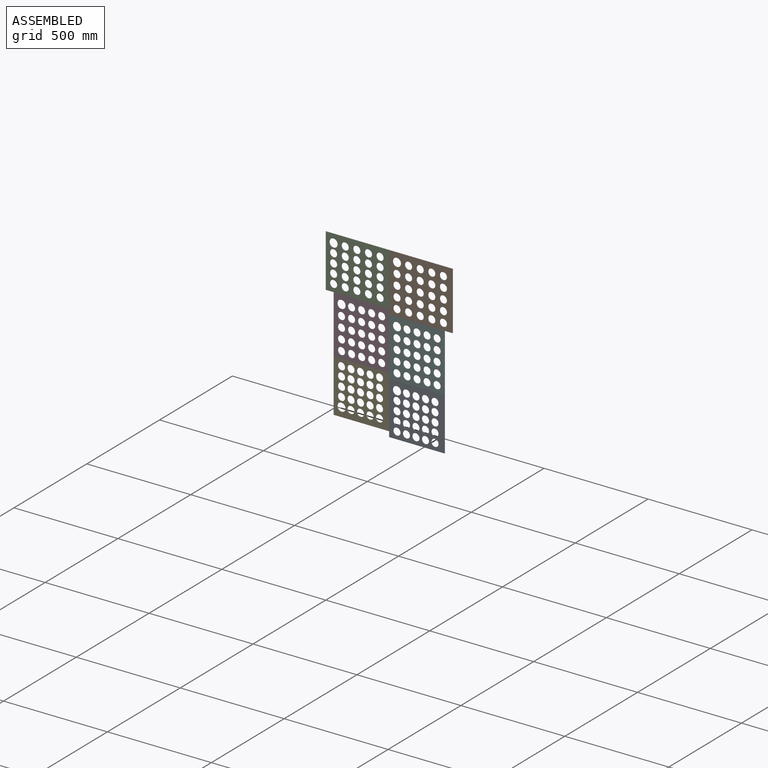
[diagram: assembled view]
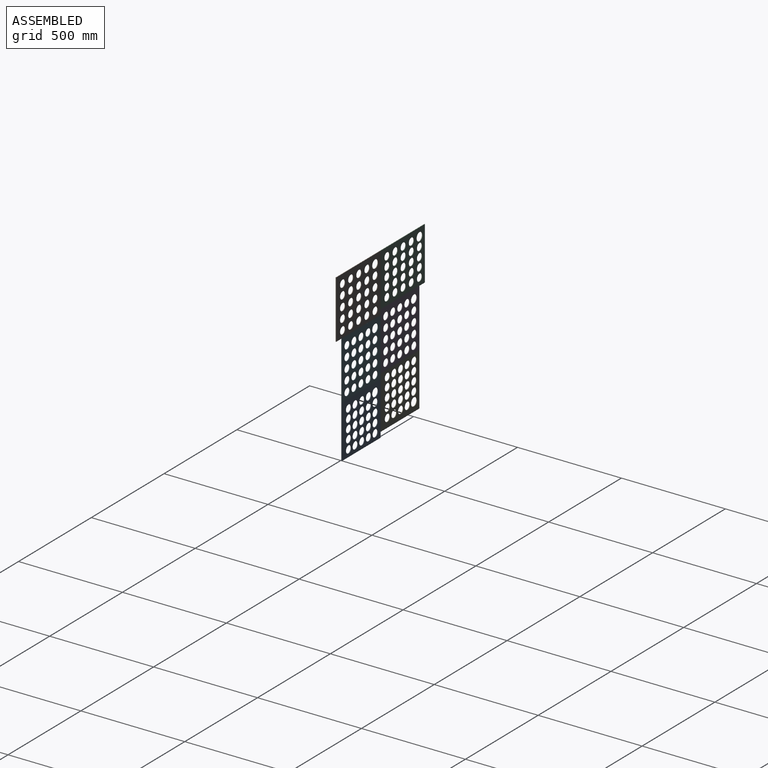
[diagram: assembled view, second angle]
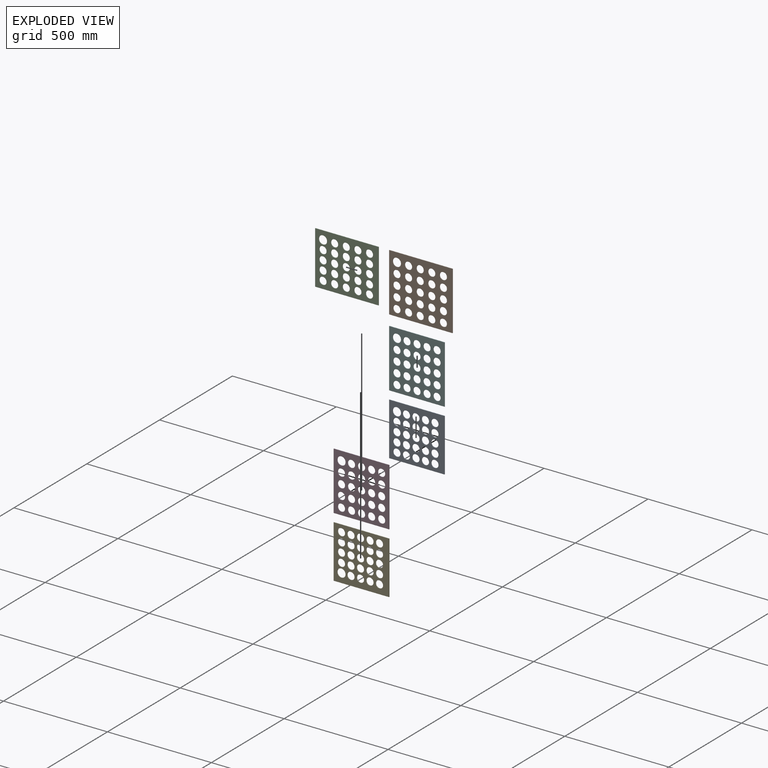
[diagram: exploded view]
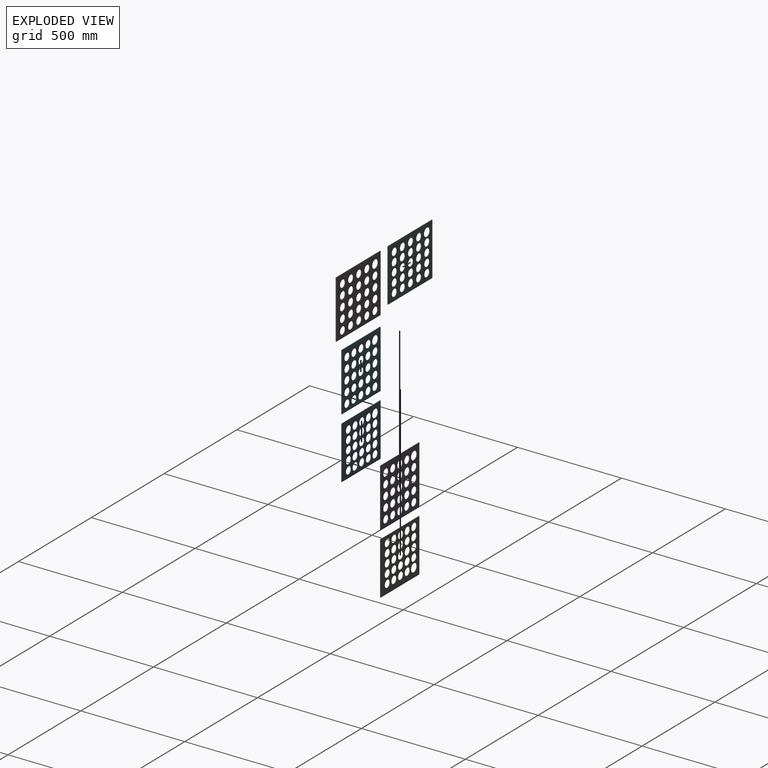
[diagram: exploded view, second angle]
ASSEMBLY  parts=6 mates=5
PART A: 31 faces, bbox 266.7x2.5x254 mm
  f0: plane 254x2.54mm, normal (-1,0,0), area 645.2mm2, adj f1,f28,f29,f30
  f1: plane 266.7x2.54mm, normal (0,0,-1), area 677.4mm2, adj f0,f2,f29,f30
  f2: plane 254x2.54mm, normal (1,0,0), area 645.2mm2, adj f1,f28,f29,f30
  f3: cylinder r=20.02mm len=40.04mm, axis (0,1,0), area 319.5mm2, adj f29,f30
  f4: cylinder r=17.62mm len=35.25mm, axis (0,1,0), area 281.3mm2, adj f29,f30
  f5: cylinder r=17.62mm len=35.25mm, axis (0,1,0), area 281.3mm2, adj f29,f30
  f6: cylinder r=17.62mm len=35.25mm, axis (0,1,0), area 281.3mm2, adj f29,f30
  f7: cylinder r=17.62mm len=35.25mm, axis (0,1,0), area 281.3mm2, adj f29,f30
  f8: cylinder r=17.62mm len=35.25mm, axis (0,1,0), area 281.3mm2, adj f29,f30
  f9: cylinder r=17.62mm len=35.25mm, axis (0,1,0), area 281.3mm2, adj f29,f30
  f10: cylinder r=17.62mm len=35.25mm, axis (0,1,0), area 281.3mm2, adj f29,f30
  f11: cylinder r=17.62mm len=35.25mm, axis (0,1,0), area 281.3mm2, adj f29,f30
  f12: cylinder r=17.62mm len=35.25mm, axis (0,1,0), area 281.3mm2, adj f29,f30
  f13: cylinder r=17.62mm len=35.25mm, axis (0,1,0), area 281.3mm2, adj f29,f30
  f14: cylinder r=17.62mm len=35.25mm, axis (0,1,0), area 281.3mm2, adj f29,f30
  f15: cylinder r=17.62mm len=35.25mm, axis (0,1,0), area 281.3mm2, adj f29,f30
  f16: cylinder r=17.62mm len=35.25mm, axis (0,1,0), area 281.3mm2, adj f29,f30
  f17: cylinder r=17.62mm len=35.25mm, axis (0,1,0), area 281.3mm2, adj f29,f30
  f18: cylinder r=17.62mm len=35.25mm, axis (0,1,0), area 281.3mm2, adj f29,f30
  f19: cylinder r=17.62mm len=35.25mm, axis (0,1,0), area 281.3mm2, adj f29,f30
  f20: cylinder r=17.62mm len=35.25mm, axis (0,1,0), area 281.3mm2, adj f29,f30
  f21: cylinder r=17.62mm len=35.25mm, axis (0,1,0), area 281.3mm2, adj f29,f30
  f22: cylinder r=17.62mm len=35.25mm, axis (0,1,0), area 281.3mm2, adj f29,f30
  f23: cylinder r=17.62mm len=35.25mm, axis (0,1,0), area 281.3mm2, adj f29,f30
  f24: cylinder r=17.62mm len=35.25mm, axis (0,1,0), area 281.3mm2, adj f29,f30
  f25: cylinder r=17.62mm len=35.25mm, axis (0,1,0), area 281.3mm2, adj f29,f30
  f26: cylinder r=17.62mm len=35.25mm, axis (0,1,0), area 281.3mm2, adj f29,f30
  f27: cylinder r=17.62mm len=35.25mm, axis (0,1,0), area 281.3mm2, adj f29,f30
  f28: plane 266.7x2.54mm, normal (0,0,1), area 677.4mm2, adj f0,f2,f29,f30
  f29: plane 266.7x254mm, normal (0,-1,0), area 43063.5mm2, adj f0,f1,f2,f3,f4,f5,f6,f7
  f30: plane 266.7x254mm, normal (0,1,0), area 43063.5mm2, adj f0,f1,f2,f3,f4,f5,f6,f7
PART B: 31 faces, bbox 304.8x2.5x279.4 mm
  f0: plane 279.4x2.54mm, normal (-1,0,0), area 709.7mm2, adj f1,f28,f29,f30
  f1: plane 304.8x2.54mm, normal (0,0,-1), area 774.2mm2, adj f0,f2,f29,f30
  f2: plane 279.4x2.54mm, normal (1,0,0), area 709.7mm2, adj f1,f28,f29,f30
  f3: cylinder r=20.02mm len=40.04mm, axis (0,1,0), area 319.5mm2, adj f29,f30
  f4: cylinder r=17.62mm len=35.25mm, axis (0,1,0), area 281.3mm2, adj f29,f30
  f5: cylinder r=17.62mm len=35.25mm, axis (0,1,0), area 281.3mm2, adj f29,f30
  f6: cylinder r=17.62mm len=35.25mm, axis (0,1,0), area 281.3mm2, adj f29,f30
  f7: cylinder r=17.62mm len=35.25mm, axis (0,1,0), area 281.3mm2, adj f29,f30
  f8: cylinder r=17.62mm len=35.25mm, axis (0,1,0), area 281.3mm2, adj f29,f30
  f9: cylinder r=17.62mm len=35.25mm, axis (0,1,0), area 281.3mm2, adj f29,f30
  f10: cylinder r=17.62mm len=35.25mm, axis (0,1,0), area 281.3mm2, adj f29,f30
  f11: cylinder r=17.62mm len=35.25mm, axis (0,1,0), area 281.3mm2, adj f29,f30
  f12: cylinder r=17.62mm len=35.25mm, axis (0,1,0), area 281.3mm2, adj f29,f30
  f13: cylinder r=17.62mm len=35.25mm, axis (0,1,0), area 281.3mm2, adj f29,f30
  f14: cylinder r=17.62mm len=35.25mm, axis (0,1,0), area 281.3mm2, adj f29,f30
  f15: cylinder r=17.62mm len=35.25mm, axis (0,1,0), area 281.3mm2, adj f29,f30
  f16: cylinder r=17.62mm len=35.25mm, axis (0,1,0), area 281.3mm2, adj f29,f30
  f17: cylinder r=17.62mm len=35.25mm, axis (0,1,0), area 281.3mm2, adj f29,f30
  f18: cylinder r=17.62mm len=35.25mm, axis (0,1,0), area 281.3mm2, adj f29,f30
  f19: cylinder r=17.62mm len=35.25mm, axis (0,1,0), area 281.3mm2, adj f29,f30
  f20: cylinder r=17.62mm len=35.25mm, axis (0,1,0), area 281.3mm2, adj f29,f30
  f21: cylinder r=17.62mm len=35.25mm, axis (0,1,0), area 281.3mm2, adj f29,f30
  f22: cylinder r=17.62mm len=35.25mm, axis (0,1,0), area 281.3mm2, adj f29,f30
  f23: cylinder r=17.62mm len=35.25mm, axis (0,1,0), area 281.3mm2, adj f29,f30
  f24: cylinder r=17.62mm len=35.25mm, axis (0,1,0), area 281.3mm2, adj f29,f30
  f25: cylinder r=17.62mm len=35.25mm, axis (0,1,0), area 281.3mm2, adj f29,f30
  f26: cylinder r=17.62mm len=35.25mm, axis (0,1,0), area 281.3mm2, adj f29,f30
  f27: cylinder r=17.62mm len=35.25mm, axis (0,1,0), area 281.3mm2, adj f29,f30
  f28: plane 304.8x2.54mm, normal (0,0,1), area 774.2mm2, adj f0,f2,f29,f30
  f29: plane 304.8x279.4mm, normal (0,-1,0), area 60482.8mm2, adj f0,f1,f2,f3,f4,f5,f6,f7
  f30: plane 304.8x279.4mm, normal (0,1,0), area 60482.8mm2, adj f0,f1,f2,f3,f4,f5,f6,f7
PART C: 31 faces, bbox 304.8x2.5x254 mm
  f0: plane 254x2.54mm, normal (-1,0,0), area 645.2mm2, adj f1,f28,f29,f30
  f1: plane 304.8x2.54mm, normal (0,0,-1), area 774.2mm2, adj f0,f2,f29,f30
  f2: plane 254x2.54mm, normal (1,0,0), area 645.2mm2, adj f1,f28,f29,f30
  f3: cylinder r=20.02mm len=40.04mm, axis (0,1,0), area 319.5mm2, adj f29,f30
  f4: cylinder r=17.62mm len=35.25mm, axis (0,1,0), area 281.3mm2, adj f29,f30
  f5: cylinder r=17.62mm len=35.25mm, axis (0,1,0), area 281.3mm2, adj f29,f30
  f6: cylinder r=17.62mm len=35.25mm, axis (0,1,0), area 281.3mm2, adj f29,f30
  f7: cylinder r=17.62mm len=35.25mm, axis (0,1,0), area 281.3mm2, adj f29,f30
  f8: cylinder r=17.62mm len=35.25mm, axis (0,1,0), area 281.3mm2, adj f29,f30
  f9: cylinder r=17.62mm len=35.25mm, axis (0,1,0), area 281.3mm2, adj f29,f30
  f10: cylinder r=17.62mm len=35.25mm, axis (0,1,0), area 281.3mm2, adj f29,f30
  f11: cylinder r=17.62mm len=35.25mm, axis (0,1,0), area 281.3mm2, adj f29,f30
  f12: cylinder r=17.62mm len=35.25mm, axis (0,1,0), area 281.3mm2, adj f29,f30
  f13: cylinder r=17.62mm len=35.25mm, axis (0,1,0), area 281.3mm2, adj f29,f30
  f14: cylinder r=17.62mm len=35.25mm, axis (0,1,0), area 281.3mm2, adj f29,f30
  f15: cylinder r=17.62mm len=35.25mm, axis (0,1,0), area 281.3mm2, adj f29,f30
  f16: cylinder r=17.62mm len=35.25mm, axis (0,1,0), area 281.3mm2, adj f29,f30
  f17: cylinder r=17.62mm len=35.25mm, axis (0,1,0), area 281.3mm2, adj f29,f30
  f18: cylinder r=17.62mm len=35.25mm, axis (0,1,0), area 281.3mm2, adj f29,f30
  f19: cylinder r=17.62mm len=35.25mm, axis (0,1,0), area 281.3mm2, adj f29,f30
  f20: cylinder r=17.62mm len=35.25mm, axis (0,1,0), area 281.3mm2, adj f29,f30
  f21: cylinder r=17.62mm len=35.25mm, axis (0,1,0), area 281.3mm2, adj f29,f30
  f22: cylinder r=17.62mm len=35.25mm, axis (0,1,0), area 281.3mm2, adj f29,f30
  f23: cylinder r=17.62mm len=35.25mm, axis (0,1,0), area 281.3mm2, adj f29,f30
  f24: cylinder r=17.62mm len=35.25mm, axis (0,1,0), area 281.3mm2, adj f29,f30
  f25: cylinder r=17.62mm len=35.25mm, axis (0,1,0), area 281.3mm2, adj f29,f30
  f26: cylinder r=17.62mm len=35.25mm, axis (0,1,0), area 281.3mm2, adj f29,f30
  f27: cylinder r=17.62mm len=35.25mm, axis (0,1,0), area 281.3mm2, adj f29,f30
  f28: plane 304.8x2.54mm, normal (0,0,1), area 774.2mm2, adj f0,f2,f29,f30
  f29: plane 304.8x254mm, normal (0,-1,0), area 52740.9mm2, adj f0,f1,f2,f3,f4,f5,f6,f7
  f30: plane 304.8x254mm, normal (0,1,0), area 52740.9mm2, adj f0,f1,f2,f3,f4,f5,f6,f7
PART D: 31 faces, bbox 266.7x2.5x279.4 mm
  f0: plane 279.4x2.54mm, normal (-1,0,0), area 709.7mm2, adj f1,f28,f29,f30
  f1: plane 266.7x2.54mm, normal (0,0,-1), area 677.4mm2, adj f0,f2,f29,f30
  f2: plane 279.4x2.54mm, normal (1,0,0), area 709.7mm2, adj f1,f28,f29,f30
  f3: cylinder r=20.02mm len=40.04mm, axis (0,1,0), area 319.5mm2, adj f29,f30
  f4: cylinder r=17.62mm len=35.25mm, axis (0,1,0), area 281.3mm2, adj f29,f30
  f5: cylinder r=17.62mm len=35.25mm, axis (0,1,0), area 281.3mm2, adj f29,f30
  f6: cylinder r=17.62mm len=35.25mm, axis (0,1,0), area 281.3mm2, adj f29,f30
  f7: cylinder r=17.62mm len=35.25mm, axis (0,1,0), area 281.3mm2, adj f29,f30
  f8: cylinder r=17.62mm len=35.25mm, axis (0,1,0), area 281.3mm2, adj f29,f30
  f9: cylinder r=17.62mm len=35.25mm, axis (0,1,0), area 281.3mm2, adj f29,f30
  f10: cylinder r=17.62mm len=35.25mm, axis (0,1,0), area 281.3mm2, adj f29,f30
  f11: cylinder r=17.62mm len=35.25mm, axis (0,1,0), area 281.3mm2, adj f29,f30
  f12: cylinder r=17.62mm len=35.25mm, axis (0,1,0), area 281.3mm2, adj f29,f30
  f13: cylinder r=17.62mm len=35.25mm, axis (0,1,0), area 281.3mm2, adj f29,f30
  f14: cylinder r=17.62mm len=35.25mm, axis (0,1,0), area 281.3mm2, adj f29,f30
  f15: cylinder r=17.62mm len=35.25mm, axis (0,1,0), area 281.3mm2, adj f29,f30
  f16: cylinder r=17.62mm len=35.25mm, axis (0,1,0), area 281.3mm2, adj f29,f30
  f17: cylinder r=17.62mm len=35.25mm, axis (0,1,0), area 281.3mm2, adj f29,f30
  f18: cylinder r=17.62mm len=35.25mm, axis (0,1,0), area 281.3mm2, adj f29,f30
  f19: cylinder r=17.62mm len=35.25mm, axis (0,1,0), area 281.3mm2, adj f29,f30
  f20: cylinder r=17.62mm len=35.25mm, axis (0,1,0), area 281.3mm2, adj f29,f30
  f21: cylinder r=17.62mm len=35.25mm, axis (0,1,0), area 281.3mm2, adj f29,f30
  f22: cylinder r=17.62mm len=35.25mm, axis (0,1,0), area 281.3mm2, adj f29,f30
  f23: cylinder r=17.62mm len=35.25mm, axis (0,1,0), area 281.3mm2, adj f29,f30
  f24: cylinder r=17.62mm len=35.25mm, axis (0,1,0), area 281.3mm2, adj f29,f30
  f25: cylinder r=17.62mm len=35.25mm, axis (0,1,0), area 281.3mm2, adj f29,f30
  f26: cylinder r=17.62mm len=35.25mm, axis (0,1,0), area 281.3mm2, adj f29,f30
  f27: cylinder r=17.62mm len=35.25mm, axis (0,1,0), area 281.3mm2, adj f29,f30
  f28: plane 266.7x2.54mm, normal (0,0,1), area 677.4mm2, adj f0,f2,f29,f30
  f29: plane 279.4x266.7mm, normal (0,-1,0), area 49837.7mm2, adj f0,f1,f2,f3,f4,f5,f6,f7
  f30: plane 279.4x266.7mm, normal (0,1,0), area 49837.7mm2, adj f0,f1,f2,f3,f4,f5,f6,f7
PART E: same geometry as A
PART F: same geometry as D
PLACE A t=(332.27,400.45,-752.41)mm
PLACE B t=(332.27,400.45,-194.19)mm
PLACE C t=(27.47,400.45,-191.75)mm
PLACE D t=(65.57,400.45,-448.19)mm
PLACE E rot(axis=(1,0,0),180deg) t=(65.57,397.91,-646.2)mm
PLACE F t=(332.27,400.45,-473.59)mm
MATE fastened C.f2 <-> B.f0  axis (1,0,0) through (226.33,399.18,-26.21)mm
MATE fastened D.f28 <-> C.f1  axis (0,0,1) through (226.33,399.18,-280.21)mm
MATE fastened A.f28 <-> F.f1  axis (0,0,1) through (226.33,399.18,-585.01)mm
MATE fastened E.f1 <-> D.f1  axis (0,0,1) through (226.33,399.18,-559.61)mm
MATE fastened F.f28 <-> B.f1  axis (0,0,1) through (226.33,399.18,-305.61)mm
